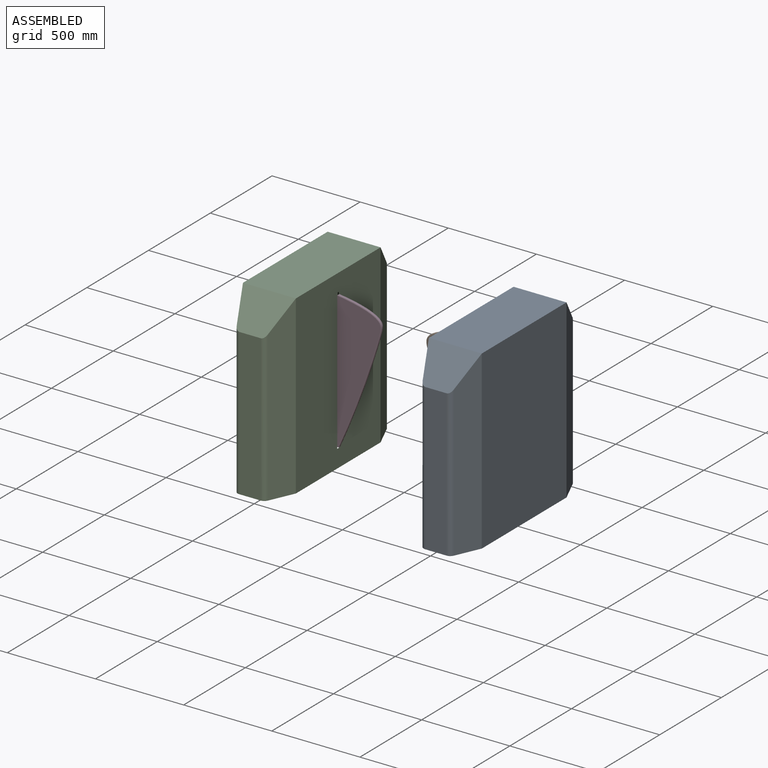
[diagram: assembled view]
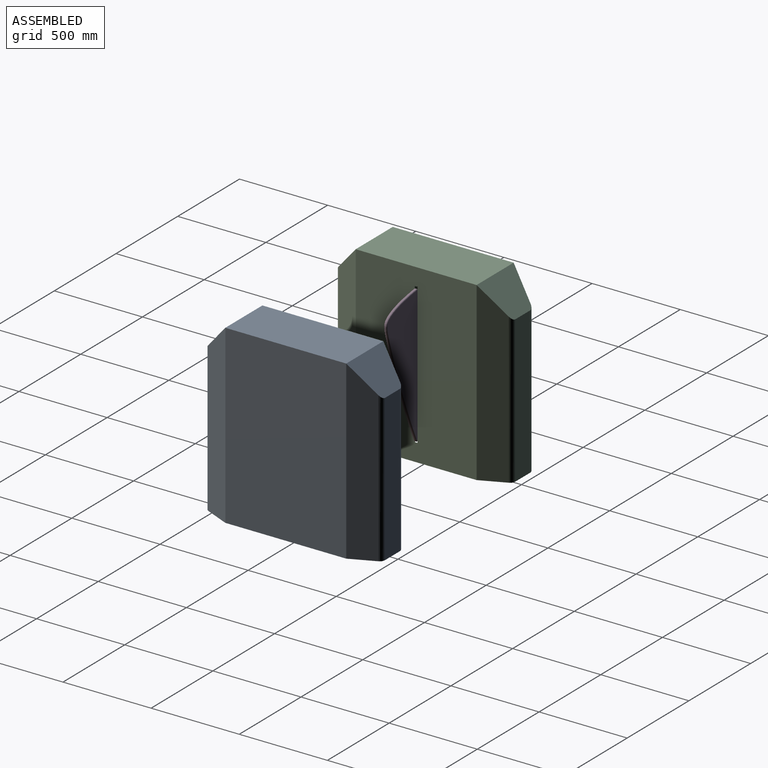
[diagram: assembled view, second angle]
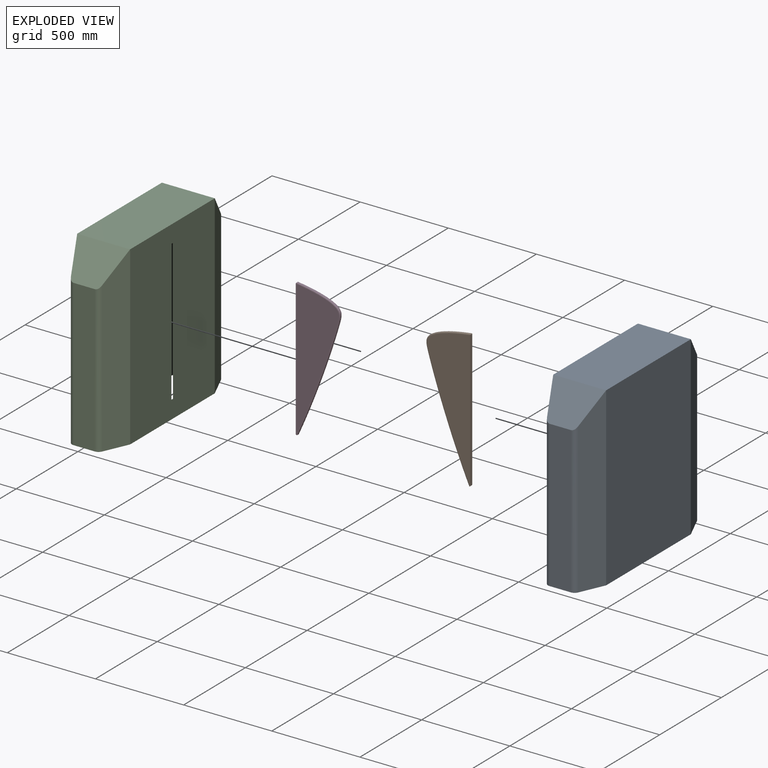
[diagram: exploded view]
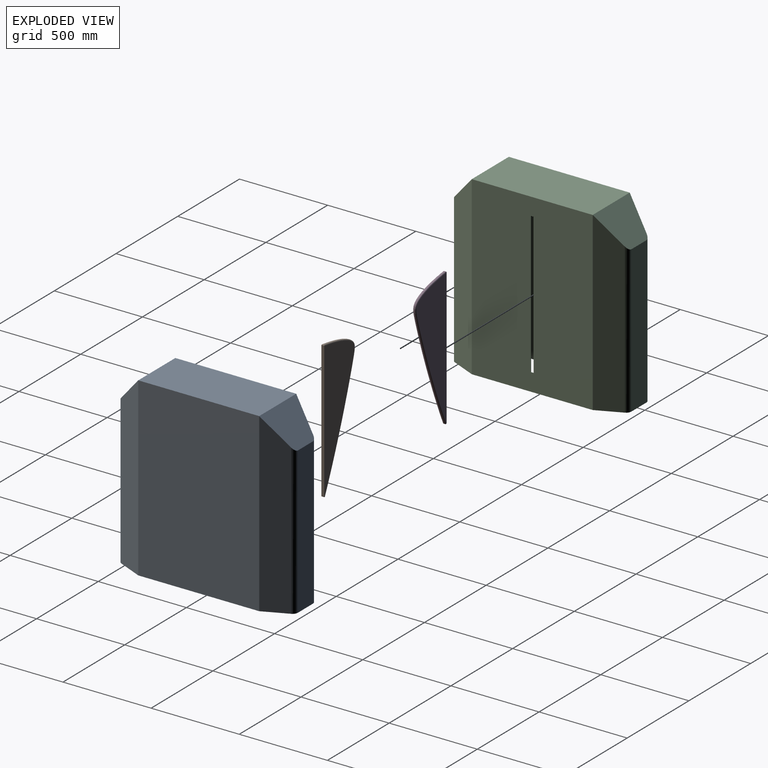
[diagram: exploded view, second angle]
ASSEMBLY  parts=4 mates=2
PART A: 35 faces, bbox 300x1000x1000 mm
  f0: plane 1000x685.83mm, normal (-1,0,0), area 673028.1mm2, adj f2,f8,f10,f11,f31,f32,f33,f34
  f1: plane 997.5x684.76mm, normal (1,0,0), area 670252.2mm2, adj f2,f20,f21,f22,f24,f25,f31,f32
  f2: plane 1000x300mm, normal (0,0,-1), area 5885.2mm2, adj f0,f1,f3,f4,f5,f9,f10,f11
  f3: plane 1000x685.83mm, normal (1,0,0), area 685828.1mm2, adj f2,f8,f9,f12
  f4: plane 832x121.05mm, normal (0,1,0), area 100713mm2, adj f2,f6,f13,f14
  f5: plane 832x121.05mm, normal (0,-1,0), area 100713mm2, adj f2,f7,f15,f16
  f6: plane 300x168mm, normal (0,0.73,0.68), area 52706.6mm2, adj f4,f8,f11,f12,f13,f14
  f7: plane 300x168mm, normal (0,-0.73,0.68), area 52706.6mm2, adj f5,f8,f9,f10,f15,f16
  f8: plane 685.83x300mm, normal (0,0,1), area 205748.4mm2, adj f0,f3,f6,f7
  f9: plane 1000x139.3mm, normal (0.91,-0.41,0), area 141142mm2, adj f2,f3,f7,f16
  f10: plane 1000x139.3mm, normal (-0.91,-0.41,0), area 141142mm2, adj f0,f2,f7,f15
  f11: plane 1000x139.3mm, normal (-0.91,0.41,0), area 141142mm2, adj f0,f2,f6,f14
  f12: plane 1000x139.3mm, normal (0.91,0.41,0), area 141142mm2, adj f2,f3,f6,f13
  f13: cylinder r=30mm len=851.03mm, axis (0,0,-1), area 28973mm2, adj f2,f4,f6,f12
  f14: cylinder r=30mm len=851.03mm, axis (0,0,-1), area 28973mm2, adj f2,f4,f6,f11
  f15: cylinder r=30mm len=851.03mm, axis (0,0,-1), area 28973mm2, adj f2,f5,f7,f10
  f16: cylinder r=30mm len=851.03mm, axis (0,0,1), area 28973mm2, adj f2,f5,f7,f9
  f17: plane 997.5x684.76mm, normal (-1,0,0), area 683052.2mm2, adj f2,f20,f21,f22,f23,f26
  f18: plane 831.01x121.05mm, normal (0,-1,0), area 100593.6mm2, adj f2,f20,f27,f28
  f19: plane 831.01x121.05mm, normal (0,1,0), area 100593.6mm2, adj f2,f21,f29,f30
  f20: plane 295x166.49mm, normal (0,-0.73,-0.68), area 51377.2mm2, adj f1,f17,f18,f22,f25,f26,f27,f28
  f21: plane 295x166.49mm, normal (0,0.73,-0.68), area 51377.2mm2, adj f1,f17,f19,f22,f23,f24,f29,f30
  f22: plane 683.66x295mm, normal (0,0,-1), area 201679.1mm2, adj f1,f17,f20,f21
  f23: plane 996.91x138.81mm, normal (-0.91,0.41,0), area 140219.4mm2, adj f2,f17,f21,f30
  f24: plane 996.91x138.81mm, normal (0.91,0.41,0), area 140219.4mm2, adj f1,f2,f21,f29
  f25: plane 996.91x138.81mm, normal (0.91,-0.41,0), area 140219.4mm2, adj f1,f2,f20,f28
  f26: plane 996.91x138.81mm, normal (-0.91,-0.41,0), area 140219.4mm2, adj f2,f17,f20,f27
  f27: cylinder r=27.5mm len=848.45mm, axis (0,0,-1), area 26509.9mm2, adj f2,f18,f20,f26
  f28: cylinder r=27.5mm len=848.45mm, axis (0,0,-1), area 26509.9mm2, adj f2,f18,f20,f25
  f29: cylinder r=27.5mm len=848.45mm, axis (0,0,-1), area 26509.9mm2, adj f2,f19,f21,f24
  f30: cylinder r=27.5mm len=848.45mm, axis (0,0,1), area 26509.9mm2, adj f2,f19,f21,f23
  f31: plane 16x2.5mm, normal (0,0,-1), area 40mm2, adj f0,f1,f32,f34
  f32: plane 800x2.5mm, normal (0,-1,0), area 2000mm2, adj f0,f1,f31,f33
  f33: plane 16x2.5mm, normal (0,0,1), area 40mm2, adj f0,f1,f32,f34
  f34: plane 800x2.5mm, normal (0,1,0), area 2000mm2, adj f0,f1,f31,f33
PART B: 8 faces, bbox 255.5x16x791 mm
  f0: extruded ~778.35x245.19mm, area 5997.6mm2, adj f4,f5,f6,f7
  f1: plane 771.33x16mm, normal (-1,0,0), area 12341.2mm2, adj f2,f3,f4,f7
  f2: plane 776.56x246.08mm, normal (0,-1,0), area 109940.8mm2, adj f1,f4,f5,f7
  f3: plane 776.56x246.08mm, normal (0,1,0), area 109940.8mm2, adj f1,f4,f6,f7
  f4: cylinder r=5mm len=16mm, axis (0,1,0), area 178mm2, adj f0,f1,f2,f3,f5,f6
  f5: bspline ~790.99x255.54mm, area 7863mm2, adj f0,f2,f4,f7
  f6: bspline ~790.99x255.54mm, area 7863mm2, adj f0,f3,f4,f7
  f7: cylinder r=5mm len=16mm, axis (0,1,0), area 107.7mm2, adj f0,f1,f2,f3,f5,f6
PART C: 35 faces, bbox 300x1000x1000 mm
  f0: plane 1000x300mm, normal (0,0,-1), area 5885.2mm2, adj f1,f2,f3,f4,f8,f9,f10,f11
  f1: plane 1000x685.83mm, normal (1,0,0), area 673028.1mm2, adj f0,f7,f8,f11,f31,f32,f33,f34
  f2: plane 832x121.05mm, normal (0,1,0), area 100713mm2, adj f0,f5,f12,f13
  f3: plane 1000x685.83mm, normal (-1,0,0), area 685828.1mm2, adj f0,f7,f9,f10
  f4: plane 832x121.05mm, normal (0,-1,0), area 100713mm2, adj f0,f6,f14,f15
  f5: plane 300x168mm, normal (0,0.73,0.68), area 52706.6mm2, adj f2,f7,f10,f11,f12,f13
  f6: plane 300x168mm, normal (0,-0.73,0.68), area 52706.6mm2, adj f4,f7,f8,f9,f14,f15
  f7: plane 685.83x300mm, normal (0,0,1), area 205748.4mm2, adj f1,f3,f5,f6
  f8: plane 1000x139.3mm, normal (0.91,-0.41,0), area 141142mm2, adj f0,f1,f6,f15
  f9: plane 1000x139.3mm, normal (-0.91,-0.41,0), area 141142mm2, adj f0,f3,f6,f14
  f10: plane 1000x139.3mm, normal (-0.91,0.41,0), area 141142mm2, adj f0,f3,f5,f13
  f11: plane 1000x139.3mm, normal (0.91,0.41,0), area 141142mm2, adj f0,f1,f5,f12
  f12: cylinder r=30mm len=851.03mm, axis (0,0,-1), area 28973mm2, adj f0,f2,f5,f11
  f13: cylinder r=30mm len=851.03mm, axis (0,0,-1), area 28973mm2, adj f0,f2,f5,f10
  f14: cylinder r=30mm len=851.03mm, axis (0,0,-1), area 28973mm2, adj f0,f4,f6,f9
  f15: cylinder r=30mm len=851.03mm, axis (0,0,1), area 28973mm2, adj f0,f4,f6,f8
  f16: plane 997.5x684.76mm, normal (-1,0,0), area 670252.2mm2, adj f0,f20,f21,f22,f23,f26,f31,f32
  f17: plane 831.01x121.05mm, normal (0,-1,0), area 100593.6mm2, adj f0,f20,f27,f28
  f18: plane 997.5x684.76mm, normal (1,0,0), area 683052.2mm2, adj f0,f20,f21,f22,f24,f25
  f19: plane 831.01x121.05mm, normal (0,1,0), area 100593.6mm2, adj f0,f21,f29,f30
  f20: plane 295x166.49mm, normal (0,-0.73,-0.68), area 51377.2mm2, adj f16,f17,f18,f22,f25,f26,f27,f28
  f21: plane 295x166.49mm, normal (0,0.73,-0.68), area 51377.2mm2, adj f16,f18,f19,f22,f23,f24,f29,f30
  f22: plane 683.66x295mm, normal (0,0,-1), area 201679.1mm2, adj f16,f18,f20,f21
  f23: plane 996.91x138.81mm, normal (-0.91,0.41,0), area 140219.4mm2, adj f0,f16,f21,f30
  f24: plane 996.91x138.81mm, normal (0.91,0.41,0), area 140219.4mm2, adj f0,f18,f21,f29
  f25: plane 996.91x138.81mm, normal (0.91,-0.41,0), area 140219.4mm2, adj f0,f18,f20,f28
  f26: plane 996.91x138.81mm, normal (-0.91,-0.41,0), area 140219.4mm2, adj f0,f16,f20,f27
  f27: cylinder r=27.5mm len=848.45mm, axis (0,0,-1), area 26509.9mm2, adj f0,f17,f20,f26
  f28: cylinder r=27.5mm len=848.45mm, axis (0,0,-1), area 26509.9mm2, adj f0,f17,f20,f25
  f29: cylinder r=27.5mm len=848.45mm, axis (0,0,-1), area 26509.9mm2, adj f0,f19,f21,f24
  f30: cylinder r=27.5mm len=848.45mm, axis (0,0,1), area 26509.9mm2, adj f0,f19,f21,f23
  f31: plane 800x2.5mm, normal (0,-1,0), area 2000mm2, adj f1,f16,f32,f33
  f32: plane 16x2.5mm, normal (0,0,1), area 40mm2, adj f1,f16,f31,f34
  f33: plane 16x2.5mm, normal (0,0,-1), area 40mm2, adj f1,f16,f31,f34
  f34: plane 800x2.5mm, normal (0,1,0), area 2000mm2, adj f1,f16,f32,f33
PART D: same geometry as B
PLACE A t=(535.5,-6.46,-656.54)mm
PLACE B rot(axis=(0,0,-1),180deg) t=(265.5,-14.46,-165.18)mm
PLACE C t=(-519.59,-5.82,-656.66)mm
PLACE D t=(-249.59,2.18,-165.3)mm
MATE fastened D.f1 <-> C.f1  axis (-1,0,0) through (-369.59,-5.82,-156.66)mm
MATE fastened B.f1 <-> A.f0  axis (1,0,0) through (385.5,-6.46,-156.54)mm
